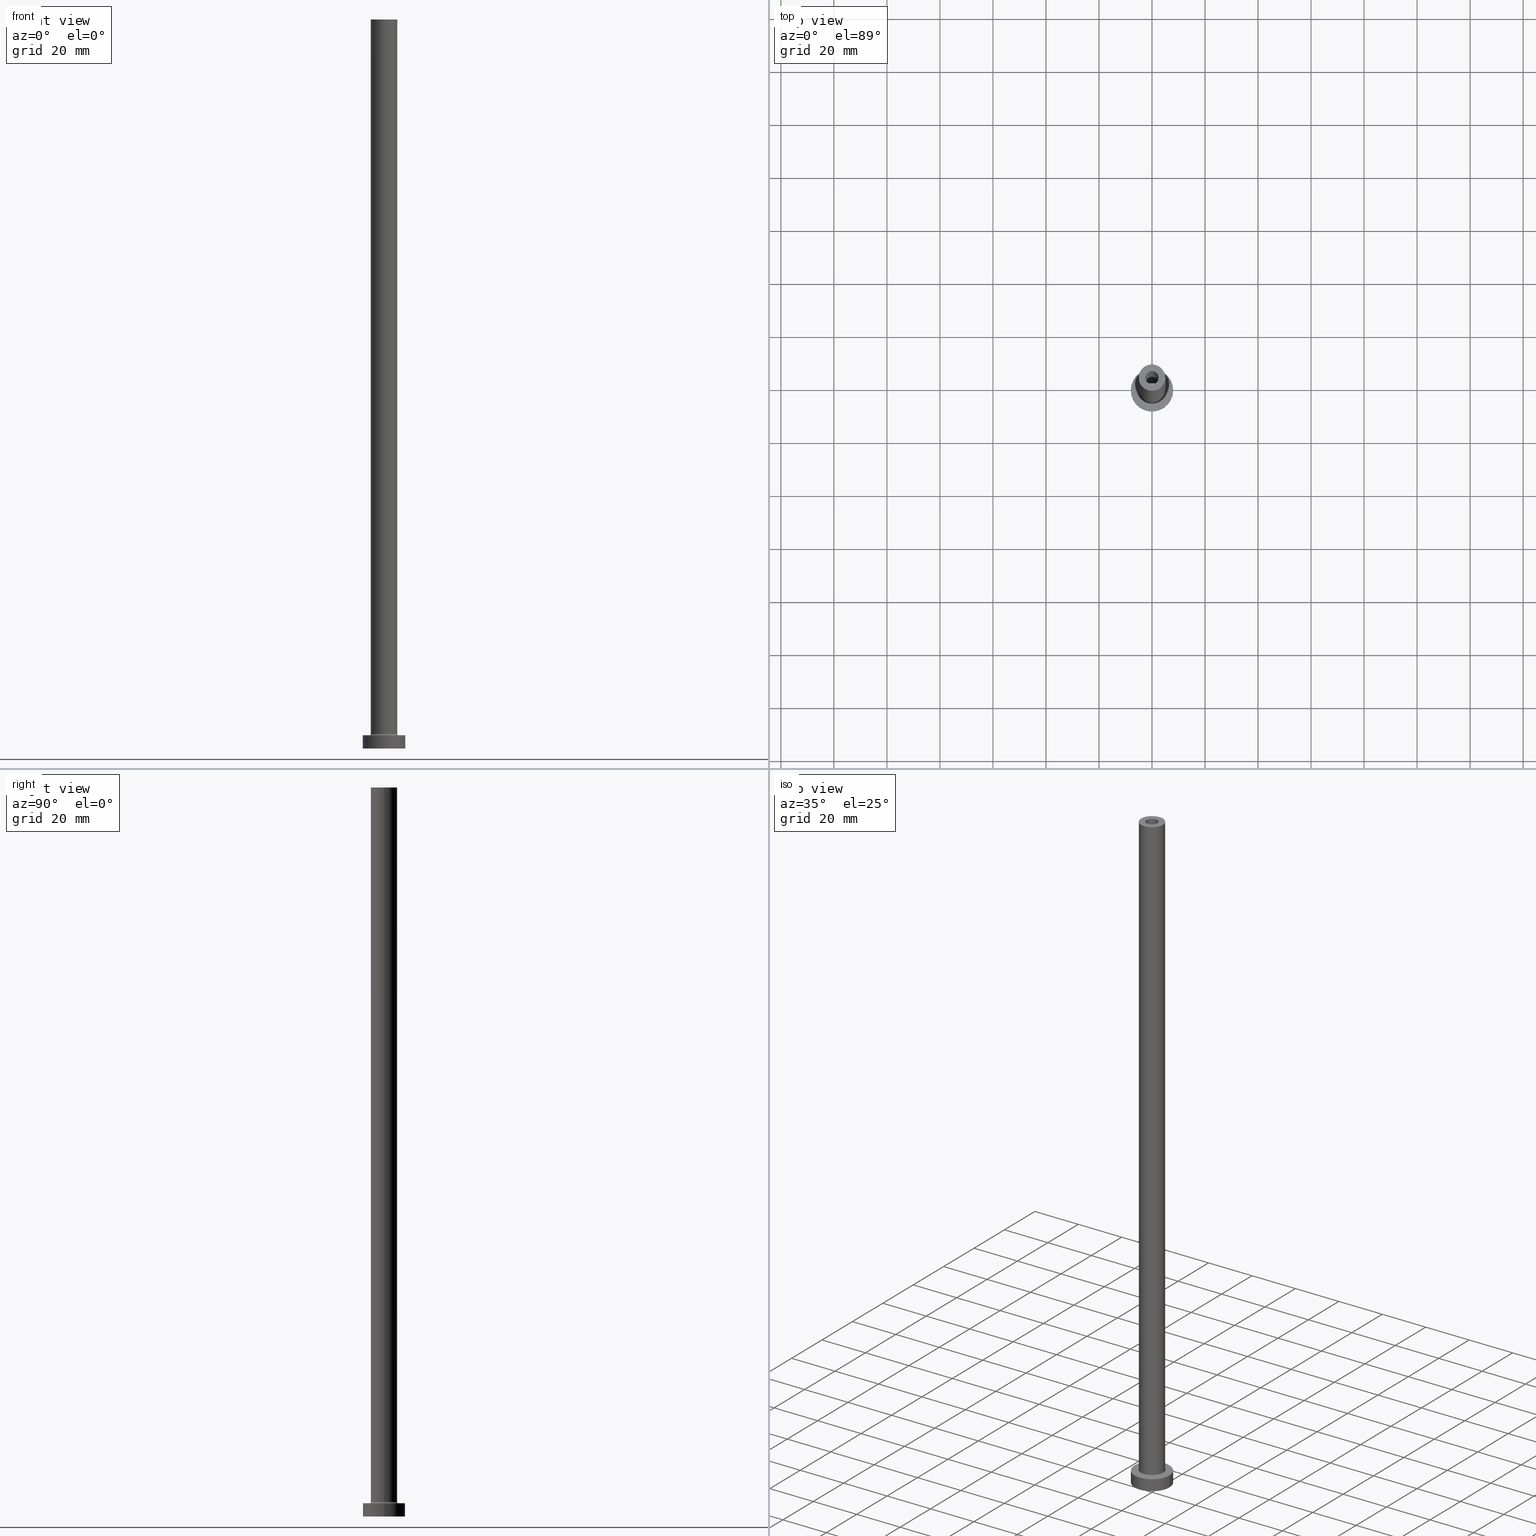
[diagram: canonical four-view strip — front | top / right | iso, engineering-drawing reading convention]
A machine part, canonical four-view strip (front | top / right | iso — engineering-drawing reading convention). The complete STEP part file that produces these views, byte-faithful:
ISO-10303-21;
HEADER;
FILE_DESCRIPTION (( 'STEP AP203' ),
    '1' );
FILE_NAME ('052c.STEP',
    '2023-02-13T16:58:50',
    ( '' ),
    ( '' ),
    'SwSTEP 2.0',
    'SolidWorks 2019',
    '' );
FILE_SCHEMA (( 'CONFIG_CONTROL_DESIGN' ));
ENDSEC;

DATA;
#1 = CALENDAR_DATE ( 2023, 13, 2 ) ;
#2 = DIRECTION ( 'NONE',  ( 1.000000000000000000, 0.000000000000000000, 0.000000000000000000 ) ) ;
#3 = ADVANCED_FACE ( 'NONE', ( #322 ), #74, .F. ) ;
#4 = CIRCLE ( 'NONE', #422, 8.000000000000000000 ) ;
#5 = CARTESIAN_POINT ( 'NONE',  ( 0.000000000000000000, 0.000000000000000000, 5.000000000000000000 ) ) ;
#6 = LINE ( 'NONE', #49, #130 ) ;
#7 = CYLINDRICAL_SURFACE ( 'NONE', #75, 2.500000000000000000 ) ;
#8 = CIRCLE ( 'NONE', #113, 2.649999999999999911 ) ;
#9 = APPROVAL_ROLE ( '' ) ;
#10 = CARTESIAN_POINT ( 'NONE',  ( 0.000000000000000000, 0.000000000000000000, 230.0000000000000284 ) ) ;
#11 = PERSON_AND_ORGANIZATION ( #148, #194 ) ;
#12 = DIRECTION ( 'NONE',  ( 1.000000000000000000, 0.000000000000000000, 0.000000000000000000 ) ) ;
#13 = VECTOR ( 'NONE', #212, 1000.000000000000000 ) ;
#14 = CARTESIAN_POINT ( 'NONE',  ( 0.000000000000000000, 0.000000000000000000, 5.000000000000000000 ) ) ;
#15 = EDGE_CURVE ( 'NONE', #376, #111, #317, .T. ) ;
#16 = APPLICATION_CONTEXT ( 'configuration controlled 3d designs of mechanical parts and assemblies' ) ;
#17 = DIRECTION ( 'NONE',  ( 1.000000000000000000, 0.000000000000000000, 0.000000000000000000 ) ) ;
#18 = AXIS2_PLACEMENT_3D ( 'NONE', #105, #370, #299 ) ;
#19 = CARTESIAN_POINT ( 'NONE',  ( 2.500000000000000000, 3.061616997868382648E-16, 275.0000000000000000 ) ) ;
#20 = ORIENTED_EDGE ( 'NONE', *, *, #332, .T. ) ;
#21 = CARTESIAN_POINT ( 'NONE',  ( 2.500000000000000000, 3.061616997868382648E-16, 275.0000000000000000 ) ) ;
#22 = ORIENTED_EDGE ( 'NONE', *, *, #295, .T. ) ;
#23 = FACE_OUTER_BOUND ( 'NONE', #70, .T. ) ;
#24 = EDGE_CURVE ( 'NONE', #26, #180, #424, .T. ) ;
#25 = AXIS2_PLACEMENT_3D ( 'NONE', #451, #128, #415 ) ;
#26 = VERTEX_POINT ( 'NONE', #429 ) ;
#27 = CC_DESIGN_APPROVAL ( #438, ( #292 ) ) ;
#28 = DIRECTION ( 'NONE',  ( 1.000000000000000000, 0.000000000000000000, 0.000000000000000000 ) ) ;
#29 = ORIENTED_EDGE ( 'NONE', *, *, #73, .T. ) ;
#30 = CARTESIAN_POINT ( 'NONE',  ( 0.000000000000000000, 0.000000000000000000, 5.500000000000005329 ) ) ;
#31 = PRODUCT_RELATED_PRODUCT_CATEGORY ( 'detail', '', ( #389 ) ) ;
#32 = PLANE ( 'NONE',  #253 ) ;
#33 = ORIENTED_EDGE ( 'NONE', *, *, #102, .T. ) ;
#34 = CIRCLE ( 'NONE', #362, 2.500000000000000000 ) ;
#35 = LOCAL_TIME ( 17, 58, 50.00000000000000000, #252 ) ;
#36 = CARTESIAN_POINT ( 'NONE',  ( 5.000000000000000000, 6.123233995736766282E-16, 5.500000000000005329 ) ) ;
#37 = ORIENTED_EDGE ( 'NONE', *, *, #170, .F. ) ;
#38 = VECTOR ( 'NONE', #85, 1000.000000000000000 ) ;
#39 = DIRECTION ( 'NONE',  ( 1.000000000000000000, 0.000000000000000000, -0.000000000000000000 ) ) ;
#40 = CARTESIAN_POINT ( 'NONE',  ( 0.000000000000000000, 0.000000000000000000, 237.4953318805774245 ) ) ;
#41 = APPROVAL_STATUS ( 'not_yet_approved' ) ;
#42 = ORIENTED_EDGE ( 'NONE', *, *, #24, .F. ) ;
#43 = CC_DESIGN_APPROVAL ( #126, ( #305 ) ) ;
#44 = COORDINATED_UNIVERSAL_TIME_OFFSET ( 1, 0, .AHEAD. ) ;
#45 = UNCERTAINTY_MEASURE_WITH_UNIT (LENGTH_MEASURE( 1.000000000000000082E-05 ), #183, 'distance_accuracy_value', 'NONE');
#46 = CARTESIAN_POINT ( 'NONE',  ( 0.000000000000000000, 0.000000000000000000, 0.000000000000000000 ) ) ;
#47 = DIRECTION ( 'NONE',  ( 1.000000000000000000, 0.000000000000000000, 0.000000000000000000 ) ) ;
#48 = SECURITY_CLASSIFICATION_LEVEL ( 'unclassified' ) ;
#49 = CARTESIAN_POINT ( 'NONE',  ( -2.500000000000000000, 0.000000000000000000, 275.0000000000000000 ) ) ;
#50 = AXIS2_PLACEMENT_3D ( 'NONE', #127, #395, #399 ) ;
#51 = PERSON_AND_ORGANIZATION_ROLE ( 'creator' ) ;
#52 = AXIS2_PLACEMENT_3D ( 'NONE', #360, #84, #145 ) ;
#53 = CARTESIAN_POINT ( 'NONE',  ( -2.500000000000000000, 0.000000000000000000, 230.0000000000000284 ) ) ;
#54 = APPLICATION_CONTEXT ( 'configuration controlled 3d designs of mechanical parts and assemblies' ) ;
#55 = CALENDAR_DATE ( 2023, 13, 2 ) ;
#56 = CARTESIAN_POINT ( 'NONE',  ( -2.500000000000000000, 0.000000000000000000, 275.0000000000000000 ) ) ;
#57 = TOROIDAL_SURFACE ( 'NONE', #144, 5.500000000000000000, 0.5000000000000000000 ) ;
#58 = EDGE_CURVE ( 'NONE', #26, #182, #333, .T. ) ;
#59 = DIRECTION ( 'NONE',  ( 1.000000000000000000, 0.000000000000000000, 0.000000000000000000 ) ) ;
#60 = ORIENTED_EDGE ( 'NONE', *, *, #120, .T. ) ;
#61 = CARTESIAN_POINT ( 'NONE',  ( 5.500000000000000000, 0.000000000000000000, 5.000000000000002665 ) ) ;
#62 = AXIS2_PLACEMENT_3D ( 'NONE', #71, #454, #39 ) ;
#63 = ORIENTED_EDGE ( 'NONE', *, *, #138, .F. ) ;
#64 = DIRECTION ( 'NONE',  ( 0.000000000000000000, 0.000000000000000000, 1.000000000000000000 ) ) ;
#65 = EDGE_LOOP ( 'NONE', ( #108, #68 ) ) ;
#66 = CIRCLE ( 'NONE', #316, 2.500000000000000000 ) ;
#67 = DIRECTION ( 'NONE',  ( 0.000000000000000000, 0.000000000000000000, 1.000000000000000000 ) ) ;
#68 = ORIENTED_EDGE ( 'NONE', *, *, #221, .T. ) ;
#69 = DIRECTION ( 'NONE',  ( 0.000000000000000000, 0.000000000000000000, 1.000000000000000000 ) ) ;
#70 = EDGE_LOOP ( 'NONE', ( #421, #249, #345, #343 ) ) ;
#71 = CARTESIAN_POINT ( 'NONE',  ( 0.000000000000000000, 0.000000000000000000, 0.000000000000000000 ) ) ;
#72 = DESIGN_CONTEXT ( 'detailed design', #54, 'design' ) ;
#73 = EDGE_CURVE ( 'NONE', #307, #414, #408, .T. ) ;
#74 = CYLINDRICAL_SURFACE ( 'NONE', #164, 2.649999999999999911 ) ;
#75 = AXIS2_PLACEMENT_3D ( 'NONE', #93, #265, #196 ) ;
#76 = ORIENTED_EDGE ( 'NONE', *, *, #341, .T. ) ;
#77 = PLANE ( 'NONE',  #62 ) ;
#78 = ORIENTED_EDGE ( 'NONE', *, *, #15, .T. ) ;
#79 = AXIS2_PLACEMENT_3D ( 'NONE', #99, #203, #103 ) ;
#80 = FACE_BOUND ( 'NONE', #300, .T. ) ;
#81 = EDGE_LOOP ( 'NONE', ( #455, #204 ) ) ;
#82 = CLOSED_SHELL ( 'NONE', ( #302, #3, #90, #195, #374, #426, #107, #453, #403, #280, #319, #349, #417, #94 ) ) ;
#83 = EDGE_CURVE ( 'NONE', #117, #387, #390, .T. ) ;
#84 = DIRECTION ( 'NONE',  ( -0.000000000000000000, -0.000000000000000000, -1.000000000000000000 ) ) ;
#85 = DIRECTION ( 'NONE',  ( 0.000000000000000000, 0.000000000000000000, -1.000000000000000000 ) ) ;
#86 = CALENDAR_DATE ( 2023, 13, 2 ) ;
#87 = CARTESIAN_POINT ( 'NONE',  ( 5.000000000000000000, 6.123233995736766282E-16, 275.0000000000000000 ) ) ;
#88 = CIRCLE ( 'NONE', #354, 5.500000000000000000 ) ;
#89 = DIRECTION ( 'NONE',  ( -0.000000000000000000, -0.000000000000000000, -1.000000000000000000 ) ) ;
#90 = ADVANCED_FACE ( 'NONE', ( #149 ), #57, .F. ) ;
#91 = VECTOR ( 'NONE', #320, 1000.000000000000000 ) ;
#92 = CARTESIAN_POINT ( 'NONE',  ( 0.000000000000000000, 0.000000000000000000, 275.0000000000000000 ) ) ;
#93 = CARTESIAN_POINT ( 'NONE',  ( 0.000000000000000000, 0.000000000000000000, 275.0000000000000000 ) ) ;
#94 = ADVANCED_FACE ( 'NONE', ( #432 ), #7, .F. ) ;
#95 = CARTESIAN_POINT ( 'NONE',  ( 8.000000000000000000, 9.797174393178825657E-16, 5.000000000000000000 ) ) ;
#96 = CARTESIAN_POINT ( 'NONE',  ( 0.000000000000000000, 0.000000000000000000, 5.000000000000000000 ) ) ;
#97 = ORIENTED_EDGE ( 'NONE', *, *, #200, .F. ) ;
#98 = CIRCLE ( 'NONE', #50, 2.649999999999999911 ) ;
#99 = CARTESIAN_POINT ( 'NONE',  ( 0.000000000000000000, 0.000000000000000000, 5.000000000000000000 ) ) ;
#100 = APPROVAL_PERSON_ORGANIZATION ( #220, #126, #393 ) ;
#101 = ORIENTED_EDGE ( 'NONE', *, *, #394, .F. ) ;
#102 = EDGE_CURVE ( 'NONE', #166, #142, #66, .T. ) ;
#103 = DIRECTION ( 'NONE',  ( 1.000000000000000000, 0.000000000000000000, 0.000000000000000000 ) ) ;
#104 = ORIENTED_EDGE ( 'NONE', *, *, #268, .T. ) ;
#105 = CARTESIAN_POINT ( 'NONE',  ( 0.000000000000000000, 0.000000000000000000, 275.0000000000000000 ) ) ;
#106 = EDGE_LOOP ( 'NONE', ( #298, #202, #279, #20 ) ) ;
#107 = ADVANCED_FACE ( 'NONE', ( #197, #402 ), #154, .T. ) ;
#108 = ORIENTED_EDGE ( 'NONE', *, *, #276, .T. ) ;
#109 = VERTEX_POINT ( 'NONE', #325 ) ;
#110 = MECHANICAL_CONTEXT ( 'NONE', #16, 'mechanical' ) ;
#111 = VERTEX_POINT ( 'NONE', #229 ) ;
#112 = ORIENTED_EDGE ( 'NONE', *, *, #146, .F. ) ;
#113 = AXIS2_PLACEMENT_3D ( 'NONE', #163, #418, #301 ) ;
#114 = APPROVAL_PERSON_ORGANIZATION ( #326, #438, #9 ) ;
#115 = CC_DESIGN_DATE_AND_TIME_ASSIGNMENT ( #187, #324, ( #292 ) ) ;
#116 = COORDINATED_UNIVERSAL_TIME_OFFSET ( 1, 0, .AHEAD. ) ;
#117 = VERTEX_POINT ( 'NONE', #95 ) ;
#118 = EDGE_LOOP ( 'NONE', ( #382, #136 ) ) ;
#119 = PERSON_AND_ORGANIZATION ( #148, #194 ) ;
#120 = EDGE_CURVE ( 'NONE', #206, #142, #6, .T. ) ;
#121 = CARTESIAN_POINT ( 'NONE',  ( 0.000000000000000000, 0.000000000000000000, 0.000000000000000000 ) ) ;
#122 = CIRCLE ( 'NONE', #159, 2.649999999999999911 ) ;
#123 = APPROVAL_DATE_TIME ( #259, #126 ) ;
#124 = DIRECTION ( 'NONE',  ( 0.000000000000000000, -1.000000000000000000, 0.000000000000000000 ) ) ;
#125 = DIRECTION ( 'NONE',  ( 1.000000000000000000, 0.000000000000000000, 0.000000000000000000 ) ) ;
#126 = APPROVAL ( #41, 'NEUR�EN�' ) ;
#127 = CARTESIAN_POINT ( 'NONE',  ( 0.000000000000000000, 0.000000000000000000, 230.0000000000000284 ) ) ;
#128 = DIRECTION ( 'NONE',  ( 0.000000000000000000, 0.000000000000000000, 1.000000000000000000 ) ) ;
#129 = CYLINDRICAL_SURFACE ( 'NONE', #346, 5.000000000000000000 ) ;
#130 = VECTOR ( 'NONE', #437, 1000.000000000000000 ) ;
#131 = DIRECTION ( 'NONE',  ( 0.000000000000000000, 0.000000000000000000, -1.000000000000000000 ) ) ;
#132 = EDGE_CURVE ( 'NONE', #376, #452, #383, .T. ) ;
#133 = ORIENTED_EDGE ( 'NONE', *, *, #24, .T. ) ;
#134 = CIRCLE ( 'NONE', #230, 8.000000000000000000 ) ;
#135 = LINE ( 'NONE', #21, #397 ) ;
#136 = ORIENTED_EDGE ( 'NONE', *, *, #233, .F. ) ;
#137 = CARTESIAN_POINT ( 'NONE',  ( 2.649999999999999911, 3.245314017740485962E-16, 230.0000000000000284 ) ) ;
#138 = EDGE_CURVE ( 'NONE', #235, #446, #266, .T. ) ;
#139 = PERSON_AND_ORGANIZATION ( #148, #194 ) ;
#140 = ORIENTED_EDGE ( 'NONE', *, *, #248, .F. ) ;
#141 = VECTOR ( 'NONE', #188, 1000.000000000000000 ) ;
#142 = VERTEX_POINT ( 'NONE', #53 ) ;
#143 = CARTESIAN_POINT ( 'NONE',  ( 2.649999999999999911, 3.245314017740485962E-16, 237.4953318805774245 ) ) ;
#144 = AXIS2_PLACEMENT_3D ( 'NONE', #30, #287, #434 ) ;
#145 = DIRECTION ( 'NONE',  ( -1.000000000000000000, 0.000000000000000000, 0.000000000000000000 ) ) ;
#146 = EDGE_CURVE ( 'NONE', #142, #166, #34, .T. ) ;
#147 = ORIENTED_EDGE ( 'NONE', *, *, #15, .F. ) ;
#148 = PERSON ( 'NEUR�EN�', 'NEUR�EN�', 'NEUR�EN�', ('NEUR�EN�'), ('NEUR�EN�'), ('NEUR�EN�') ) ;
#149 = FACE_OUTER_BOUND ( 'NONE', #217, .T. ) ;
#150 =( GEOMETRIC_REPRESENTATION_CONTEXT ( 3 ) GLOBAL_UNCERTAINTY_ASSIGNED_CONTEXT ( ( #45 ) ) GLOBAL_UNIT_ASSIGNED_CONTEXT ( ( #183, #381, #318 ) ) REPRESENTATION_CONTEXT ( 'NONE', 'WORKASPACE' ) );
#151 = APPROVAL_STATUS ( 'not_yet_approved' ) ;
#152 = DIRECTION ( 'NONE',  ( -0.000000000000000000, -0.000000000000000000, -1.000000000000000000 ) ) ;
#153 = CC_DESIGN_PERSON_AND_ORGANIZATION_ASSIGNMENT ( #386, #218, ( #389 ) ) ;
#154 = PLANE ( 'NONE',  #270 ) ;
#155 = DIRECTION ( 'NONE',  ( 0.000000000000000000, 0.000000000000000000, 1.000000000000000000 ) ) ;
#156 = DIRECTION ( 'NONE',  ( 1.000000000000000000, 0.000000000000000000, 0.000000000000000000 ) ) ;
#157 = EDGE_CURVE ( 'NONE', #444, #414, #406, .T. ) ;
#158 = DIRECTION ( 'NONE',  ( 0.000000000000000000, 0.000000000000000000, 1.000000000000000000 ) ) ;
#159 = AXIS2_PLACEMENT_3D ( 'NONE', #121, #192, #329 ) ;
#160 = CARTESIAN_POINT ( 'NONE',  ( 0.000000000000000000, 0.000000000000000000, 5.500000000000005329 ) ) ;
#161 = ORIENTED_EDGE ( 'NONE', *, *, #83, .T. ) ;
#162 = CC_DESIGN_PERSON_AND_ORGANIZATION_ASSIGNMENT ( #289, #396, ( #292 ) ) ;
#163 = CARTESIAN_POINT ( 'NONE',  ( 0.000000000000000000, 0.000000000000000000, 0.000000000000000000 ) ) ;
#164 = AXIS2_PLACEMENT_3D ( 'NONE', #40, #392, #178 ) ;
#165 = DIRECTION ( 'NONE',  ( 0.000000000000000000, 0.000000000000000000, -1.000000000000000000 ) ) ;
#166 = VERTEX_POINT ( 'NONE', #296 ) ;
#167 = AXIS2_PLACEMENT_3D ( 'NONE', #92, #334, #294 ) ;
#168 = CARTESIAN_POINT ( 'NONE',  ( 0.000000000000000000, 0.000000000000000000, 237.4953318805774245 ) ) ;
#169 = CC_DESIGN_SECURITY_CLASSIFICATION ( #292, ( #305 ) ) ;
#170 = EDGE_CURVE ( 'NONE', #452, #376, #98, .T. ) ;
#171 = ORIENTED_EDGE ( 'NONE', *, *, #290, .T. ) ;
#172 = CYLINDRICAL_SURFACE ( 'NONE', #244, 8.000000000000000000 ) ;
#173 = ORIENTED_EDGE ( 'NONE', *, *, #186, .T. ) ;
#174 = EDGE_LOOP ( 'NONE', ( #37, #303 ) ) ;
#175 = DATE_AND_TIME ( #1, #35 ) ;
#176 = CIRCLE ( 'NONE', #448, 5.000000000000000000 ) ;
#177 = LOCAL_TIME ( 17, 58, 50.00000000000000000, #116 ) ;
#178 = DIRECTION ( 'NONE',  ( -1.000000000000000000, 0.000000000000000000, 0.000000000000000000 ) ) ;
#179 = CARTESIAN_POINT ( 'NONE',  ( -8.000000000000000000, 0.000000000000000000, 0.000000000000000000 ) ) ;
#180 = VERTEX_POINT ( 'NONE', #436 ) ;
#181 = DIRECTION ( 'NONE',  ( 1.000000000000000000, 0.000000000000000000, -0.000000000000000000 ) ) ;
#182 = VERTEX_POINT ( 'NONE', #401 ) ;
#183 =( LENGTH_UNIT ( ) NAMED_UNIT ( * ) SI_UNIT ( .MILLI., .METRE. ) );
#184 = EDGE_LOOP ( 'NONE', ( #240, #161, #275, #63 ) ) ;
#185 = AXIS2_PLACEMENT_3D ( 'NONE', #277, #69, #28 ) ;
#186 = EDGE_CURVE ( 'NONE', #414, #307, #88, .T. ) ;
#187 = DATE_AND_TIME ( #86, #313 ) ;
#188 = DIRECTION ( 'NONE',  ( -0.000000000000000000, -0.000000000000000000, -1.000000000000000000 ) ) ;
#189 = AXIS2_PLACEMENT_3D ( 'NONE', #439, #365, #125 ) ;
#190 = DIRECTION ( 'NONE',  ( 1.000000000000000000, 0.000000000000000000, 0.000000000000000000 ) ) ;
#191 = PERSON_AND_ORGANIZATION_ROLE ( 'design_supplier' ) ;
#192 = DIRECTION ( 'NONE',  ( -0.000000000000000000, -0.000000000000000000, -1.000000000000000000 ) ) ;
#193 = AXIS2_PLACEMENT_3D ( 'NONE', #14, #158, #440 ) ;
#194 = ORGANIZATION ( 'NEUR�EN�', 'NEUR�EN�', '' ) ;
#195 = ADVANCED_FACE ( 'NONE', ( #264 ), #288, .T. ) ;
#196 = DIRECTION ( 'NONE',  ( -1.000000000000000000, 0.000000000000000000, 0.000000000000000000 ) ) ;
#197 = FACE_BOUND ( 'NONE', #357, .T. ) ;
#198 = DIRECTION ( 'NONE',  ( -1.000000000000000000, 0.000000000000000000, 0.000000000000000000 ) ) ;
#199 = EDGE_LOOP ( 'NONE', ( #76, #171, #112, #459 ) ) ;
#200 = EDGE_CURVE ( 'NONE', #182, #444, #405, .T. ) ;
#201 = FACE_OUTER_BOUND ( 'NONE', #378, .T. ) ;
#202 = ORIENTED_EDGE ( 'NONE', *, *, #276, .F. ) ;
#203 = DIRECTION ( 'NONE',  ( 0.000000000000000000, 0.000000000000000000, 1.000000000000000000 ) ) ;
#204 = ORIENTED_EDGE ( 'NONE', *, *, #295, .F. ) ;
#205 = PLANE ( 'NONE',  #18 ) ;
#206 = VERTEX_POINT ( 'NONE', #56 ) ;
#207 = AXIS2_PLACEMENT_3D ( 'NONE', #291, #124, #231 ) ;
#208 = CARTESIAN_POINT ( 'NONE',  ( 8.000000000000000000, 9.797174393178825657E-16, 0.000000000000000000 ) ) ;
#209 = ORIENTED_EDGE ( 'NONE', *, *, #379, .T. ) ;
#210 = FACE_OUTER_BOUND ( 'NONE', #118, .T. ) ;
#211 = AXIS2_PLACEMENT_3D ( 'NONE', #5, #152, #254 ) ;
#212 = DIRECTION ( 'NONE',  ( -0.000000000000000000, -0.000000000000000000, -1.000000000000000000 ) ) ;
#213 = FACE_OUTER_BOUND ( 'NONE', #106, .T. ) ;
#214 = ORIENTED_EDGE ( 'NONE', *, *, #146, .T. ) ;
#215 = APPROVAL_STATUS ( 'not_yet_approved' ) ;
#216 = VECTOR ( 'NONE', #369, 1000.000000000000000 ) ;
#217 = EDGE_LOOP ( 'NONE', ( #101, #309, #359, #222 ) ) ;
#218 = PERSON_AND_ORGANIZATION_ROLE ( 'design_owner' ) ;
#219 = CARTESIAN_POINT ( 'NONE',  ( 0.000000000000000000, 0.000000000000000000, 275.0000000000000000 ) ) ;
#220 = PERSON_AND_ORGANIZATION ( #148, #194 ) ;
#221 = EDGE_CURVE ( 'NONE', #117, #235, #304, .T. ) ;
#222 = ORIENTED_EDGE ( 'NONE', *, *, #157, .F. ) ;
#223 = DATE_AND_TIME ( #55, #355 ) ;
#224 = CARTESIAN_POINT ( 'NONE',  ( -5.500000000000000000, 6.735557395310442023E-16, 5.500000000000005329 ) ) ;
#225 = CIRCLE ( 'NONE', #337, 0.5000000000000004441 ) ;
#226 = DIRECTION ( 'NONE',  ( 0.000000000000000000, 0.000000000000000000, 1.000000000000000000 ) ) ;
#227 = DIRECTION ( 'NONE',  ( -1.000000000000000000, 1.224646799147351482E-16, 0.000000000000000000 ) ) ;
#228 = CALENDAR_DATE ( 2023, 13, 2 ) ;
#229 = CARTESIAN_POINT ( 'NONE',  ( 2.649999999999999911, 3.245314017740485962E-16, 0.000000000000000000 ) ) ;
#230 = AXIS2_PLACEMENT_3D ( 'NONE', #412, #348, #297 ) ;
#231 = DIRECTION ( 'NONE',  ( 0.000000000000000000, 0.000000000000000000, -1.000000000000000000 ) ) ;
#232 = DIRECTION ( 'NONE',  ( 1.000000000000000000, 0.000000000000000000, 0.000000000000000000 ) ) ;
#233 = EDGE_CURVE ( 'NONE', #387, #446, #4, .T. ) ;
#234 = DIRECTION ( 'NONE',  ( -1.000000000000000000, 0.000000000000000000, 0.000000000000000000 ) ) ;
#235 = VERTEX_POINT ( 'NONE', #435 ) ;
#236 = VECTOR ( 'NONE', #356, 1000.000000000000000 ) ;
#237 = DIRECTION ( 'NONE',  ( 0.000000000000000000, 0.000000000000000000, -1.000000000000000000 ) ) ;
#238 = EDGE_LOOP ( 'NONE', ( #273, #78, #285, #419 ) ) ;
#239 = CARTESIAN_POINT ( 'NONE',  ( 0.000000000000000000, 0.000000000000000000, 275.0000000000000000 ) ) ;
#240 = ORIENTED_EDGE ( 'NONE', *, *, #221, .F. ) ;
#241 = EDGE_CURVE ( 'NONE', #180, #307, #225, .T. ) ;
#242 = FACE_OUTER_BOUND ( 'NONE', #199, .T. ) ;
#243 = ORIENTED_EDGE ( 'NONE', *, *, #58, .T. ) ;
#244 = AXIS2_PLACEMENT_3D ( 'NONE', #96, #306, #447 ) ;
#245 = AXIS2_PLACEMENT_3D ( 'NONE', #423, #250, #431 ) ;
#246 = ORIENTED_EDGE ( 'NONE', *, *, #268, .F. ) ;
#247 = APPLICATION_PROTOCOL_DEFINITION ( 'international standard', 'config_control_design', 1994, #16 ) ;
#248 = EDGE_CURVE ( 'NONE', #109, #111, #122, .T. ) ;
#249 = ORIENTED_EDGE ( 'NONE', *, *, #379, .F. ) ;
#250 = DIRECTION ( 'NONE',  ( 0.000000000000000000, 0.000000000000000000, 1.000000000000000000 ) ) ;
#251 = VERTEX_POINT ( 'NONE', #19 ) ;
#252 = COORDINATED_UNIVERSAL_TIME_OFFSET ( 1, 0, .AHEAD. ) ;
#253 = AXIS2_PLACEMENT_3D ( 'NONE', #388, #350, #181 ) ;
#254 = DIRECTION ( 'NONE',  ( 1.000000000000000000, 0.000000000000000000, 0.000000000000000000 ) ) ;
#255 = EDGE_CURVE ( 'NONE', #111, #109, #8, .T. ) ;
#256 = DATE_TIME_ROLE ( 'creation_date' ) ;
#257 = EDGE_LOOP ( 'NONE', ( #97, #416, #133, #385 ) ) ;
#258 = DIRECTION ( 'NONE',  ( 0.000000000000000000, 0.000000000000000000, 1.000000000000000000 ) ) ;
#259 = DATE_AND_TIME ( #228, #450 ) ;
#260 = DIRECTION ( 'NONE',  ( 0.000000000000000000, 0.000000000000000000, 1.000000000000000000 ) ) ;
#261 = AXIS2_PLACEMENT_3D ( 'NONE', #168, #165, #198 ) ;
#262 = CIRCLE ( 'NONE', #372, 2.500000000000000000 ) ;
#263 = APPROVAL_DATE_TIME ( #223, #438 ) ;
#264 = FACE_OUTER_BOUND ( 'NONE', #315, .T. ) ;
#265 = DIRECTION ( 'NONE',  ( 0.000000000000000000, 0.000000000000000000, -1.000000000000000000 ) ) ;
#266 = LINE ( 'NONE', #367, #141 ) ;
#267 = CIRCLE ( 'NONE', #79, 8.000000000000000000 ) ;
#268 = EDGE_CURVE ( 'NONE', #182, #26, #430, .T. ) ;
#269 = DIRECTION ( 'NONE',  ( 0.000000000000000000, 0.000000000000000000, 1.000000000000000000 ) ) ;
#270 = AXIS2_PLACEMENT_3D ( 'NONE', #327, #155, #331 ) ;
#271 = DIRECTION ( 'NONE',  ( -0.000000000000000000, -0.000000000000000000, -1.000000000000000000 ) ) ;
#272 = FACE_BOUND ( 'NONE', #81, .T. ) ;
#273 = ORIENTED_EDGE ( 'NONE', *, *, #170, .T. ) ;
#274 = CARTESIAN_POINT ( 'NONE',  ( 0.000000000000000000, 0.000000000000000000, 275.0000000000000000 ) ) ;
#275 = ORIENTED_EDGE ( 'NONE', *, *, #233, .T. ) ;
#276 = EDGE_CURVE ( 'NONE', #235, #117, #267, .T. ) ;
#277 = CARTESIAN_POINT ( 'NONE',  ( 0.000000000000000000, 0.000000000000000000, 5.500000000000005329 ) ) ;
#278 = ORIENTED_EDGE ( 'NONE', *, *, #290, .F. ) ;
#279 = ORIENTED_EDGE ( 'NONE', *, *, #138, .T. ) ;
#280 = ADVANCED_FACE ( 'NONE', ( #272, #377 ), #205, .T. ) ;
#281 = ORIENTED_EDGE ( 'NONE', *, *, #255, .F. ) ;
#282 = CALENDAR_DATE ( 2023, 13, 2 ) ;
#283 = ORIENTED_EDGE ( 'NONE', *, *, #132, .T. ) ;
#284 = PERSON_AND_ORGANIZATION ( #148, #194 ) ;
#285 = ORIENTED_EDGE ( 'NONE', *, *, #255, .T. ) ;
#286 = APPROVAL_DATE_TIME ( #175, #310 ) ;
#287 = DIRECTION ( 'NONE',  ( 0.000000000000000000, 0.000000000000000000, 1.000000000000000000 ) ) ;
#288 = CYLINDRICAL_SURFACE ( 'NONE', #167, 5.000000000000000000 ) ;
#289 = PERSON_AND_ORGANIZATION ( #148, #194 ) ;
#290 = EDGE_CURVE ( 'NONE', #251, #166, #135, .T. ) ;
#291 = CARTESIAN_POINT ( 'NONE',  ( 5.500000000000000000, 0.000000000000000000, 5.500000000000005329 ) ) ;
#292 = SECURITY_CLASSIFICATION ( '', '', #48 ) ;
#293 = CARTESIAN_POINT ( 'NONE',  ( 0.000000000000000000, 0.000000000000000000, 230.0000000000000284 ) ) ;
#294 = DIRECTION ( 'NONE',  ( -1.000000000000000000, 0.000000000000000000, 0.000000000000000000 ) ) ;
#295 = EDGE_CURVE ( 'NONE', #251, #206, #262, .T. ) ;
#296 = CARTESIAN_POINT ( 'NONE',  ( 2.500000000000000000, 3.061616997868382648E-16, 230.0000000000000284 ) ) ;
#297 = DIRECTION ( 'NONE',  ( 1.000000000000000000, 0.000000000000000000, 0.000000000000000000 ) ) ;
#298 = ORIENTED_EDGE ( 'NONE', *, *, #83, .F. ) ;
#299 = DIRECTION ( 'NONE',  ( 1.000000000000000000, 0.000000000000000000, -0.000000000000000000 ) ) ;
#300 = EDGE_LOOP ( 'NONE', ( #140, #281 ) ) ;
#301 = DIRECTION ( 'NONE',  ( 1.000000000000000000, 0.000000000000000000, 0.000000000000000000 ) ) ;
#302 = ADVANCED_FACE ( 'NONE', ( #242 ), #344, .F. ) ;
#303 = ORIENTED_EDGE ( 'NONE', *, *, #132, .F. ) ;
#304 = CIRCLE ( 'NONE', #193, 8.000000000000000000 ) ;
#305 = PRODUCT_DEFINITION_FORMATION_WITH_SPECIFIED_SOURCE ( 'LIBOVOLN�', '', #389, .NOT_KNOWN. ) ;
#306 = DIRECTION ( 'NONE',  ( -0.000000000000000000, -0.000000000000000000, -1.000000000000000000 ) ) ;
#307 = VERTEX_POINT ( 'NONE', #375 ) ;
#308 = CARTESIAN_POINT ( 'NONE',  ( 0.000000000000000000, 0.000000000000000000, 5.500000000000005329 ) ) ;
#309 = ORIENTED_EDGE ( 'NONE', *, *, #241, .T. ) ;
#310 = APPROVAL ( #215, 'NEUR�EN�' ) ;
#311 = CARTESIAN_POINT ( 'NONE',  ( -2.649999999999999911, 0.000000000000000000, 237.4953318805774245 ) ) ;
#312 = EDGE_LOOP ( 'NONE', ( #278, #22, #60, #340 ) ) ;
#313 = LOCAL_TIME ( 17, 58, 50.00000000000000000, #400 ) ;
#314 = PERSON_AND_ORGANIZATION_ROLE ( 'creator' ) ;
#315 = EDGE_LOOP ( 'NONE', ( #246, #353, #209, #42 ) ) ;
#316 = AXIS2_PLACEMENT_3D ( 'NONE', #10, #226, #190 ) ;
#317 = LINE ( 'NONE', #143, #38 ) ;
#318 =( NAMED_UNIT ( * ) SI_UNIT ( $, .STERADIAN. ) SOLID_ANGLE_UNIT ( ) );
#319 = ADVANCED_FACE ( 'NONE', ( #23 ), #330, .F. ) ;
#320 = DIRECTION ( 'NONE',  ( -0.000000000000000000, -0.000000000000000000, -1.000000000000000000 ) ) ;
#321 = AXIS2_PLACEMENT_3D ( 'NONE', #160, #64, #407 ) ;
#322 = FACE_OUTER_BOUND ( 'NONE', #238, .T. ) ;
#323 = PRODUCT_DEFINITION_SHAPE ( 'NONE', 'NONE',  #358 ) ;
#324 = DATE_TIME_ROLE ( 'classification_date' ) ;
#325 = CARTESIAN_POINT ( 'NONE',  ( -2.649999999999999911, 0.000000000000000000, 0.000000000000000000 ) ) ;
#326 = PERSON_AND_ORGANIZATION ( #148, #194 ) ;
#327 = CARTESIAN_POINT ( 'NONE',  ( 0.000000000000000000, 0.000000000000000000, 5.000000000000000000 ) ) ;
#328 = SHAPE_DEFINITION_REPRESENTATION ( #323, #336 ) ;
#329 = DIRECTION ( 'NONE',  ( 1.000000000000000000, 0.000000000000000000, 0.000000000000000000 ) ) ;
#330 = TOROIDAL_SURFACE ( 'NONE', #321, 5.500000000000000000, 0.5000000000000000000 ) ;
#331 = DIRECTION ( 'NONE',  ( 1.000000000000000000, 0.000000000000000000, -0.000000000000000000 ) ) ;
#332 = EDGE_CURVE ( 'NONE', #446, #387, #134, .T. ) ;
#333 = CIRCLE ( 'NONE', #425, 5.000000000000000000 ) ;
#334 = DIRECTION ( 'NONE',  ( -0.000000000000000000, -0.000000000000000000, -1.000000000000000000 ) ) ;
#335 = DIRECTION ( 'NONE',  ( 0.000000000000000000, 0.000000000000000000, 1.000000000000000000 ) ) ;
#336 = ADVANCED_BREP_SHAPE_REPRESENTATION ( '052c', ( #347, #245 ), #150 ) ;
#337 = AXIS2_PLACEMENT_3D ( 'NONE', #224, #363, #227 ) ;
#338 = APPROVAL_PERSON_ORGANIZATION ( #284, #310, #428 ) ;
#339 = FACE_BOUND ( 'NONE', #411, .T. ) ;
#340 = ORIENTED_EDGE ( 'NONE', *, *, #102, .F. ) ;
#341 = EDGE_CURVE ( 'NONE', #206, #251, #441, .T. ) ;
#342 = CYLINDRICAL_SURFACE ( 'NONE', #261, 2.649999999999999911 ) ;
#343 = ORIENTED_EDGE ( 'NONE', *, *, #73, .F. ) ;
#344 = CYLINDRICAL_SURFACE ( 'NONE', #456, 2.500000000000000000 ) ;
#345 = ORIENTED_EDGE ( 'NONE', *, *, #157, .T. ) ;
#346 = AXIS2_PLACEMENT_3D ( 'NONE', #443, #271, #234 ) ;
#347 = MANIFOLD_SOLID_BREP ( 'Odebrat vysunut�m4', #82 ) ;
#348 = DIRECTION ( 'NONE',  ( 0.000000000000000000, 0.000000000000000000, 1.000000000000000000 ) ) ;
#349 = ADVANCED_FACE ( 'NONE', ( #201 ), #342, .F. ) ;
#350 = DIRECTION ( 'NONE',  ( 0.000000000000000000, 0.000000000000000000, 1.000000000000000000 ) ) ;
#351 = CARTESIAN_POINT ( 'NONE',  ( 8.000000000000000000, 9.797174393178825657E-16, 5.000000000000000000 ) ) ;
#352 = APPLICATION_PROTOCOL_DEFINITION ( 'international standard', 'config_control_design', 1994, #54 ) ;
#353 = ORIENTED_EDGE ( 'NONE', *, *, #200, .T. ) ;
#354 = AXIS2_PLACEMENT_3D ( 'NONE', #366, #89, #156 ) ;
#355 = LOCAL_TIME ( 17, 58, 50.00000000000000000, #404 ) ;
#356 = DIRECTION ( 'NONE',  ( 0.000000000000000000, 0.000000000000000000, -1.000000000000000000 ) ) ;
#357 = EDGE_LOOP ( 'NONE', ( #173, #29 ) ) ;
#358 = PRODUCT_DEFINITION ( 'NEZN�M�', '', #305, #72 ) ;
#359 = ORIENTED_EDGE ( 'NONE', *, *, #186, .F. ) ;
#360 = CARTESIAN_POINT ( 'NONE',  ( 0.000000000000000000, 0.000000000000000000, 5.000000000000000000 ) ) ;
#361 = EDGE_LOOP ( 'NONE', ( #243, #104 ) ) ;
#362 = AXIS2_PLACEMENT_3D ( 'NONE', #293, #260, #12 ) ;
#363 = DIRECTION ( 'NONE',  ( 1.224646799147353207E-16, 1.000000000000000000, -0.000000000000000000 ) ) ;
#364 = CC_DESIGN_DATE_AND_TIME_ASSIGNMENT ( #420, #256, ( #358 ) ) ;
#365 = DIRECTION ( 'NONE',  ( 0.000000000000000000, 0.000000000000000000, 1.000000000000000000 ) ) ;
#366 = CARTESIAN_POINT ( 'NONE',  ( 0.000000000000000000, 0.000000000000000000, 5.000000000000000000 ) ) ;
#367 = CARTESIAN_POINT ( 'NONE',  ( -8.000000000000000000, 0.000000000000000000, 5.000000000000000000 ) ) ;
#368 = CIRCLE ( 'NONE', #185, 5.000000000000000000 ) ;
#369 = DIRECTION ( 'NONE',  ( -0.000000000000000000, -0.000000000000000000, -1.000000000000000000 ) ) ;
#370 = DIRECTION ( 'NONE',  ( 0.000000000000000000, 0.000000000000000000, 1.000000000000000000 ) ) ;
#371 = FACE_OUTER_BOUND ( 'NONE', #257, .T. ) ;
#372 = AXIS2_PLACEMENT_3D ( 'NONE', #239, #67, #17 ) ;
#373 = ORIENTED_EDGE ( 'NONE', *, *, #433, .T. ) ;
#374 = ADVANCED_FACE ( 'NONE', ( #409 ), #172, .T. ) ;
#375 = CARTESIAN_POINT ( 'NONE',  ( -5.500000000000000000, 6.735557395310442023E-16, 5.000000000000002665 ) ) ;
#376 = VERTEX_POINT ( 'NONE', #137 ) ;
#377 = FACE_OUTER_BOUND ( 'NONE', #361, .T. ) ;
#378 = EDGE_LOOP ( 'NONE', ( #147, #283, #373, #449 ) ) ;
#379 = EDGE_CURVE ( 'NONE', #444, #180, #368, .T. ) ;
#380 = DIRECTION ( 'NONE',  ( -1.000000000000000000, 0.000000000000000000, 0.000000000000000000 ) ) ;
#381 =( NAMED_UNIT ( * ) PLANE_ANGLE_UNIT ( ) SI_UNIT ( $, .RADIAN. ) );
#382 = ORIENTED_EDGE ( 'NONE', *, *, #332, .F. ) ;
#383 = CIRCLE ( 'NONE', #189, 2.649999999999999911 ) ;
#384 = CARTESIAN_POINT ( 'NONE',  ( -2.649999999999999911, 0.000000000000000000, 230.0000000000000284 ) ) ;
#385 = ORIENTED_EDGE ( 'NONE', *, *, #394, .T. ) ;
#386 = PERSON_AND_ORGANIZATION ( #148, #194 ) ;
#387 = VERTEX_POINT ( 'NONE', #208 ) ;
#388 = CARTESIAN_POINT ( 'NONE',  ( 0.000000000000000000, 0.000000000000000000, 230.0000000000000284 ) ) ;
#389 = PRODUCT ( '052c', '052c', '', ( #110 ) ) ;
#390 = LINE ( 'NONE', #351, #91 ) ;
#391 = FACE_OUTER_BOUND ( 'NONE', #174, .T. ) ;
#392 = DIRECTION ( 'NONE',  ( 0.000000000000000000, 0.000000000000000000, -1.000000000000000000 ) ) ;
#393 = APPROVAL_ROLE ( '' ) ;
#394 = EDGE_CURVE ( 'NONE', #180, #444, #176, .T. ) ;
#395 = DIRECTION ( 'NONE',  ( 0.000000000000000000, 0.000000000000000000, 1.000000000000000000 ) ) ;
#396 = PERSON_AND_ORGANIZATION_ROLE ( 'classification_officer' ) ;
#397 = VECTOR ( 'NONE', #131, 1000.000000000000000 ) ;
#398 = CC_DESIGN_APPROVAL ( #310, ( #358 ) ) ;
#399 = DIRECTION ( 'NONE',  ( 1.000000000000000000, 0.000000000000000000, 0.000000000000000000 ) ) ;
#400 = COORDINATED_UNIVERSAL_TIME_OFFSET ( 1, 0, .AHEAD. ) ;
#401 = CARTESIAN_POINT ( 'NONE',  ( 5.000000000000000000, 6.123233995736766282E-16, 275.0000000000000000 ) ) ;
#402 = FACE_OUTER_BOUND ( 'NONE', #65, .T. ) ;
#403 = ADVANCED_FACE ( 'NONE', ( #371 ), #129, .T. ) ;
#404 = COORDINATED_UNIVERSAL_TIME_OFFSET ( 1, 0, .AHEAD. ) ;
#405 = LINE ( 'NONE', #87, #216 ) ;
#406 = CIRCLE ( 'NONE', #207, 0.5000000000000004441 ) ;
#407 = DIRECTION ( 'NONE',  ( 1.000000000000000000, 0.000000000000000000, 0.000000000000000000 ) ) ;
#408 = CIRCLE ( 'NONE', #211, 5.500000000000000000 ) ;
#409 = FACE_OUTER_BOUND ( 'NONE', #184, .T. ) ;
#410 = CC_DESIGN_PERSON_AND_ORGANIZATION_ASSIGNMENT ( #119, #51, ( #305 ) ) ;
#411 = EDGE_LOOP ( 'NONE', ( #214, #33 ) ) ;
#412 = CARTESIAN_POINT ( 'NONE',  ( 0.000000000000000000, 0.000000000000000000, 0.000000000000000000 ) ) ;
#413 = AXIS2_PLACEMENT_3D ( 'NONE', #274, #335, #59 ) ;
#414 = VERTEX_POINT ( 'NONE', #61 ) ;
#415 = DIRECTION ( 'NONE',  ( 1.000000000000000000, 0.000000000000000000, 0.000000000000000000 ) ) ;
#416 = ORIENTED_EDGE ( 'NONE', *, *, #58, .F. ) ;
#417 = ADVANCED_FACE ( 'NONE', ( #339, #391 ), #32, .F. ) ;
#418 = DIRECTION ( 'NONE',  ( -0.000000000000000000, -0.000000000000000000, -1.000000000000000000 ) ) ;
#419 = ORIENTED_EDGE ( 'NONE', *, *, #433, .F. ) ;
#420 = DATE_AND_TIME ( #282, #177 ) ;
#421 = ORIENTED_EDGE ( 'NONE', *, *, #241, .F. ) ;
#422 = AXIS2_PLACEMENT_3D ( 'NONE', #46, #258, #47 ) ;
#423 = CARTESIAN_POINT ( 'NONE',  ( 0.000000000000000000, 0.000000000000000000, 0.000000000000000000 ) ) ;
#424 = LINE ( 'NONE', #461, #13 ) ;
#425 = AXIS2_PLACEMENT_3D ( 'NONE', #219, #427, #2 ) ;
#426 = ADVANCED_FACE ( 'NONE', ( #213 ), #458, .T. ) ;
#427 = DIRECTION ( 'NONE',  ( 0.000000000000000000, 0.000000000000000000, 1.000000000000000000 ) ) ;
#428 = APPROVAL_ROLE ( '' ) ;
#429 = CARTESIAN_POINT ( 'NONE',  ( -5.000000000000000000, 0.000000000000000000, 275.0000000000000000 ) ) ;
#430 = CIRCLE ( 'NONE', #413, 5.000000000000000000 ) ;
#431 = DIRECTION ( 'NONE',  ( 1.000000000000000000, 0.000000000000000000, 0.000000000000000000 ) ) ;
#432 = FACE_OUTER_BOUND ( 'NONE', #312, .T. ) ;
#433 = EDGE_CURVE ( 'NONE', #452, #109, #460, .T. ) ;
#434 = DIRECTION ( 'NONE',  ( 1.000000000000000000, 0.000000000000000000, 0.000000000000000000 ) ) ;
#435 = CARTESIAN_POINT ( 'NONE',  ( -8.000000000000000000, 0.000000000000000000, 5.000000000000000000 ) ) ;
#436 = CARTESIAN_POINT ( 'NONE',  ( -5.000000000000000000, 0.000000000000000000, 5.500000000000005329 ) ) ;
#437 = DIRECTION ( 'NONE',  ( 0.000000000000000000, 0.000000000000000000, -1.000000000000000000 ) ) ;
#438 = APPROVAL ( #151, 'NEUR�EN�' ) ;
#439 = CARTESIAN_POINT ( 'NONE',  ( 0.000000000000000000, 0.000000000000000000, 230.0000000000000284 ) ) ;
#440 = DIRECTION ( 'NONE',  ( 1.000000000000000000, 0.000000000000000000, 0.000000000000000000 ) ) ;
#441 = CIRCLE ( 'NONE', #25, 2.500000000000000000 ) ;
#442 = CC_DESIGN_PERSON_AND_ORGANIZATION_ASSIGNMENT ( #139, #314, ( #358 ) ) ;
#443 = CARTESIAN_POINT ( 'NONE',  ( 0.000000000000000000, 0.000000000000000000, 275.0000000000000000 ) ) ;
#444 = VERTEX_POINT ( 'NONE', #36 ) ;
#445 = CARTESIAN_POINT ( 'NONE',  ( 0.000000000000000000, 0.000000000000000000, 275.0000000000000000 ) ) ;
#446 = VERTEX_POINT ( 'NONE', #179 ) ;
#447 = DIRECTION ( 'NONE',  ( -1.000000000000000000, 0.000000000000000000, 0.000000000000000000 ) ) ;
#448 = AXIS2_PLACEMENT_3D ( 'NONE', #308, #269, #232 ) ;
#449 = ORIENTED_EDGE ( 'NONE', *, *, #248, .T. ) ;
#450 = LOCAL_TIME ( 17, 58, 50.00000000000000000, #44 ) ;
#451 = CARTESIAN_POINT ( 'NONE',  ( 0.000000000000000000, 0.000000000000000000, 275.0000000000000000 ) ) ;
#452 = VERTEX_POINT ( 'NONE', #384 ) ;
#453 = ADVANCED_FACE ( 'NONE', ( #80, #210 ), #77, .F. ) ;
#454 = DIRECTION ( 'NONE',  ( 0.000000000000000000, 0.000000000000000000, 1.000000000000000000 ) ) ;
#455 = ORIENTED_EDGE ( 'NONE', *, *, #341, .F. ) ;
#456 = AXIS2_PLACEMENT_3D ( 'NONE', #445, #237, #380 ) ;
#457 = CC_DESIGN_PERSON_AND_ORGANIZATION_ASSIGNMENT ( #11, #191, ( #305 ) ) ;
#458 = CYLINDRICAL_SURFACE ( 'NONE', #52, 8.000000000000000000 ) ;
#459 = ORIENTED_EDGE ( 'NONE', *, *, #120, .F. ) ;
#460 = LINE ( 'NONE', #311, #236 ) ;
#461 = CARTESIAN_POINT ( 'NONE',  ( -5.000000000000000000, 0.000000000000000000, 275.0000000000000000 ) ) ;
ENDSEC;
END-ISO-10303-21;
